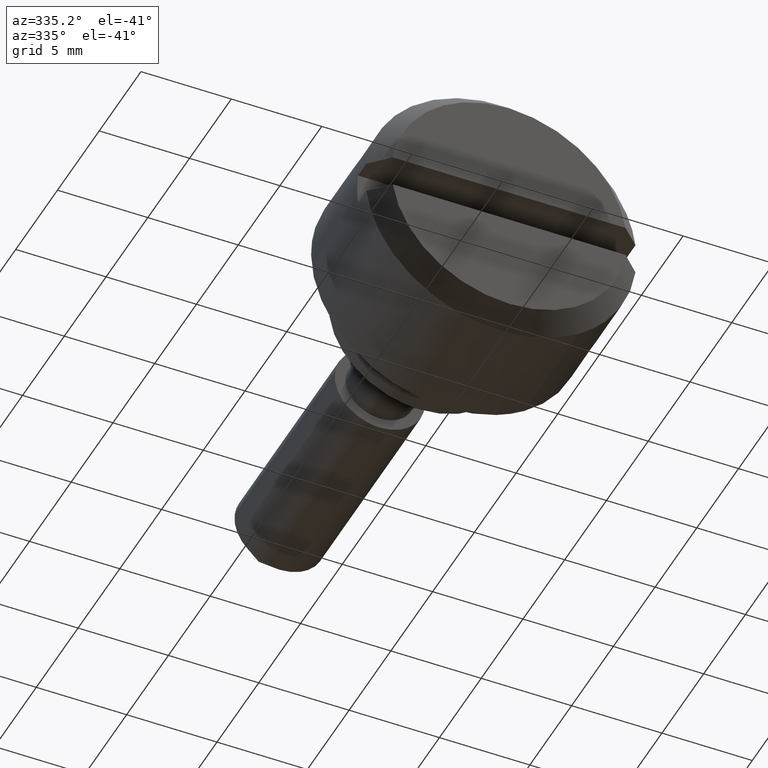
[diagram: clean part render]
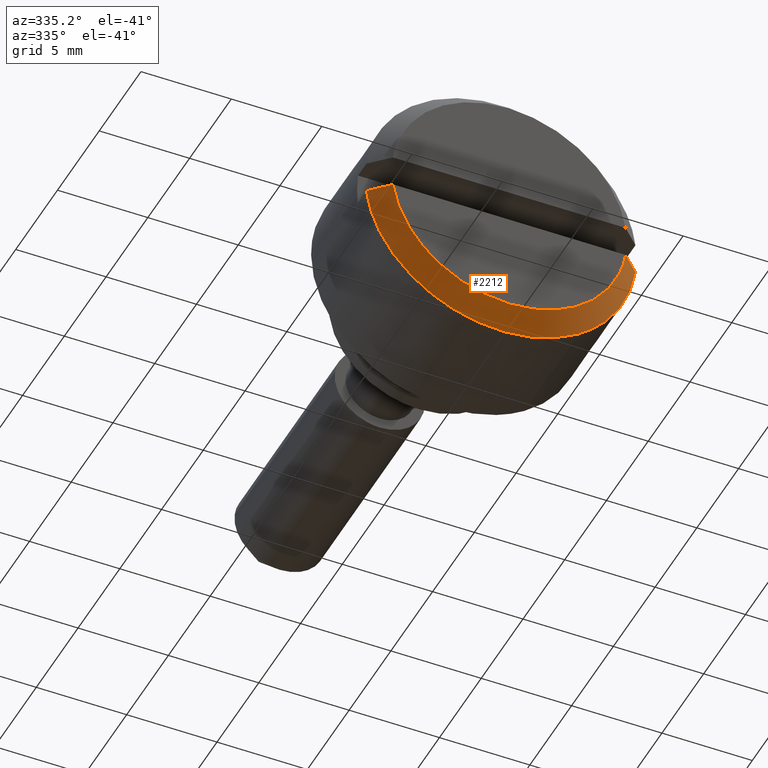
[diagram: same view with one face highlighted and labeled with its STEP entity id]
A machine part, auxiliary view. The second image highlights one B-rep face of the part: STEP entity #2212.
In plain terms, the highlighted face is a freeform B-spline surface patch.
Its self-contained STEP definition (entity closure, byte-faithful):
#1803=CARTESIAN_POINT('',(-8.999899999999988,-4.287828165019596,-6.153416094110790));
#1804=VERTEX_POINT('',#1803);
#1805=CARTESIAN_POINT('',(-8.999900000000000,7.445804187594519,-0.900000000000000));
#1806=VERTEX_POINT('',#1805);
#1807=CARTESIAN_POINT('',(-8.999899999999988,-4.287828165019596,-6.153416094110790));
#1808=CARTESIAN_POINT('',(-8.999900000000000,-2.355360081021675,-7.500000000000000));
#1809=CARTESIAN_POINT('',(-8.999900000000000,0.0,-7.500000000000000));
#1810=CARTESIAN_POINT('',(-8.999900000000002,6.648039453209386,-7.499999999999999));
#1811=CARTESIAN_POINT('',(-8.999900000000000,7.445804187594514,-0.900000000000002));
#1819=(BOUNDED_CURVE()B_SPLINE_CURVE(2,(#1807,#1808,#1809,#1810,#1811),.UNSPECIFIED.,.F.,.U.)B_SPLINE_CURVE_WITH_KNOTS((3,2,3),(0.288480248155529,0.500000000000000,1.0),.UNSPECIFIED.)CURVE()GEOMETRIC_REPRESENTATION_ITEM()RATIONAL_B_SPLINE_CURVE((0.877146962719209,0.893534273086041,1.0,0.748331477354788,1.0))REPRESENTATION_ITEM(''));
#1820=EDGE_CURVE('',#1804,#1806,#1819,.T.);
#1904=CARTESIAN_POINT('',(-8.999900000000000,-7.445804187594519,-0.900000000000000));
#1905=VERTEX_POINT('',#1904);
#1906=CARTESIAN_POINT('',(-8.999900000000000,-7.445804187594514,-0.899999999999998));
#1907=CARTESIAN_POINT('',(-8.999900000000002,-7.042853563046742,-4.233657164057371));
#1908=CARTESIAN_POINT('',(-8.999899999999988,-4.287828165019596,-6.153416094110790));
#1916=(BOUNDED_CURVE()B_SPLINE_CURVE(2,(#1906,#1907,#1908),.UNSPECIFIED.,.F.,.U.)B_SPLINE_CURVE_WITH_KNOTS((3,3),(0.0,0.288480248155529),.UNSPECIFIED.)CURVE()GEOMETRIC_REPRESENTATION_ITEM()RATIONAL_B_SPLINE_CURVE((1.0,0.854797204268748,0.877146962719209))REPRESENTATION_ITEM(''));
#1917=EDGE_CURVE('',#1905,#1804,#1916,.T.);
#2017=CARTESIAN_POINT('',(-9.999900000000000,6.437390775772390,-0.900000000000000));
#2018=VERTEX_POINT('',#2017);
#2019=CARTESIAN_POINT('',(-9.999900000000000,6.437390775772390,-0.900000000000000));
#2020=CARTESIAN_POINT('',(-9.666790425772755,6.773750161947020,-0.900000000000000));
#2021=CARTESIAN_POINT('',(-9.333419248877917,7.109850490492676,-0.900000000000000));
#2022=CARTESIAN_POINT('',(-8.999900000000000,7.445804187594519,-0.900000000000000));
#2023=B_SPLINE_CURVE_WITH_KNOTS('',3,(#2019,#2020,#2021,#2022),.UNSPECIFIED.,.F.,.U.,(4,4),(0.929162089459678,1.0),.UNSPECIFIED.);
#2024=EDGE_CURVE('',#2018,#1806,#2023,.T.);
#2026=CARTESIAN_POINT('',(-9.999900000000000,-6.437390775772390,-0.900000000000000));
#2027=VERTEX_POINT('',#2026);
#2033=CARTESIAN_POINT('',(-8.999900000000000,-7.445804187594519,-0.900000000000000));
#2034=CARTESIAN_POINT('',(-9.333419141448815,-7.109850583502691,-0.900000000000000));
#2035=CARTESIAN_POINT('',(-9.666790308170464,-6.773750285482499,-0.900000000000000));
#2036=CARTESIAN_POINT('',(-9.999900000000000,-6.437390775772390,-0.900000000000000));
#2037=B_SPLINE_CURVE_WITH_KNOTS('',3,(#2033,#2034,#2035,#2036),.UNSPECIFIED.,.F.,.U.,(4,4),(0.0,0.070808166643105),.UNSPECIFIED.);
#2038=EDGE_CURVE('',#1905,#2027,#2037,.T.);
#2173=CARTESIAN_POINT('',(-10.024900000000001,6.454071600112195,-0.520177643334644));
#2174=CARTESIAN_POINT('',(-8.974274999999999,7.501300785419979,-0.604580984883441));
#2175=CARTESIAN_POINT('',(-10.024900000000002,5.964737335158588,-6.591561953803933));
#2176=CARTESIAN_POINT('',(-8.974274999999999,6.932567785004305,-7.661100143412471));
#2177=CARTESIAN_POINT('',(-10.024900000000001,-0.125195761933142,-6.473789541002546));
#2178=CARTESIAN_POINT('',(-8.974274999999999,-0.145509861914764,-7.524218133514642));
#2179=CARTESIAN_POINT('',(-10.024900000000002,-6.215128859024871,-6.356017128201159));
#2180=CARTESIAN_POINT('',(-8.974274999999999,-7.223587508833833,-7.387336123616815));
#2181=CARTESIAN_POINT('',(-10.024900000000001,-6.469357636956139,-0.270253150133828));
#2182=CARTESIAN_POINT('',(-8.974274999999999,-7.519067114535609,-0.314104071502069));
#2190=(BOUNDED_SURFACE()B_SPLINE_SURFACE(1,2,((#2173,#2175,#2177,#2179,#2181),(#2174,#2176,#2178,#2180,#2182)),.UNSPECIFIED.,.F.,.F.,.U.)B_SPLINE_SURFACE_WITH_KNOTS((2,2),(3,2,3),(0.0,1.0),(0.0,11.933619185760000,23.867238371519999),.UNSPECIFIED.)GEOMETRIC_REPRESENTATION_ITEM()RATIONAL_B_SPLINE_SURFACE(((1.0,0.728370969882400,1.0,0.728370969882400,1.0),(1.0,0.728370969882400,1.0,0.728370969882400,1.0)))REPRESENTATION_ITEM('')SURFACE());
#2191=ORIENTED_EDGE('',*,*,#1820,.F.);
#2192=ORIENTED_EDGE('',*,*,#1917,.F.);
#2193=ORIENTED_EDGE('',*,*,#2038,.T.);
#2194=CARTESIAN_POINT('',(-9.999900000000000,6.437390775772390,-0.900000000000000));
#2195=CARTESIAN_POINT('',(-9.999900000000000,5.654464870610918,-6.500000000000001));
#2196=CARTESIAN_POINT('',(-9.999900000000000,0.0,-6.500000000000000));
#2197=CARTESIAN_POINT('',(-9.999900000000000,-5.654464870610914,-6.500000000000001));
#2198=CARTESIAN_POINT('',(-9.999900000000000,-6.437390775772390,-0.900000000000000));
#2206=(BOUNDED_CURVE()B_SPLINE_CURVE(2,(#2194,#2195,#2196,#2197,#2198),.UNSPECIFIED.,.F.,.U.)B_SPLINE_CURVE_WITH_KNOTS((3,2,3),(0.0,0.500000000000000,1.0),.UNSPECIFIED.)CURVE()GEOMETRIC_REPRESENTATION_ITEM()RATIONAL_B_SPLINE_CURVE((1.0,0.754473836014722,1.0,0.754473836014722,1.0))REPRESENTATION_ITEM(''));
#2207=EDGE_CURVE('',#2018,#2027,#2206,.T.);
#2208=ORIENTED_EDGE('',*,*,#2207,.F.);
#2209=ORIENTED_EDGE('',*,*,#2024,.T.);
#2210=EDGE_LOOP('',(#2191,#2192,#2193,#2208,#2209));
#2211=FACE_OUTER_BOUND('',#2210,.T.);
#2212=ADVANCED_FACE('',(#2211),#2190,.T.);